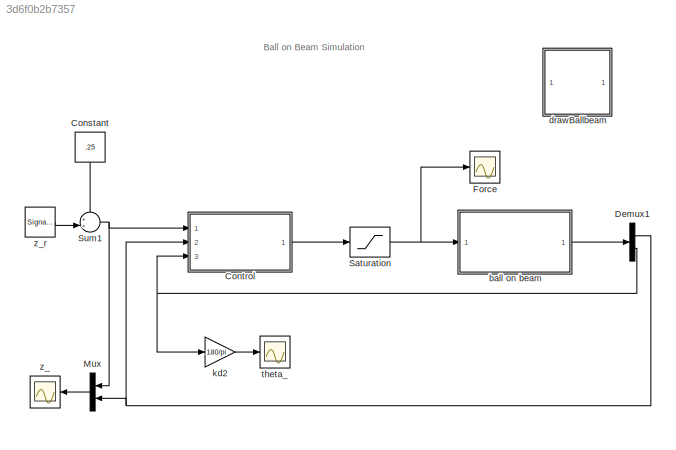
MODEL slx_3d6f0b2b7357
KIND model
CONFIG AbsTol = auto
CONFIG EnableMultiTasking = on
CONFIG FixedStep = auto
CONFIG InitFcn = addpath ./..\nballbeam_param\nballbeamParamHWf
CONFIG MaxStep = auto
CONFIG MinStep = auto
CONFIG RelTol = 1e-3
CONFIG SampleTimeConstraint = Unconstrained
CONFIG Solver = ode45
CONFIG SolverName = ode45
CONFIG StartTime = 0.0
CONFIG StopTime = P.t_end
BLOCK [Constant] Constant
  Value = .25
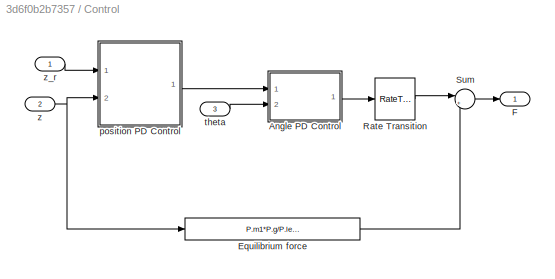
BLOCK [SubSystem] Control
  Ports = [3, 1]
  RequestExecContextInheritance = off
  Variant = off
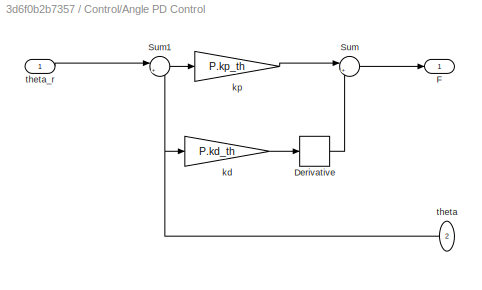
BLOCK [SubSystem] Control/Angle PD Control 
  Ports = [2, 1]
  RequestExecContextInheritance = off
  Variant = off
BLOCK [Derivative] Control/Angle PD Control /Derivative
  CoefficientInTFapproximation = P.sigma
BLOCK [Outport] Control/Angle PD Control /F
  IconDisplay = Port number
BLOCK [Sum] Control/Angle PD Control /Sum
  IconShape = round
  InputSameDT = off
  Inputs = |+-
  OutDataTypeStr = Inherit: Inherit via internal rule
  Ports = [2, 1]
  SaturateOnIntegerOverflow = off
BLOCK [Sum] Control/Angle PD Control /Sum1
  IconShape = round
  InputSameDT = off
  Inputs = |+-
  OutDataTypeStr = Inherit: Inherit via internal rule
  Ports = [2, 1]
  SaturateOnIntegerOverflow = off
BLOCK [Gain] Control/Angle PD Control /kd
  Gain = P.kd_th
  OutDataTypeStr = Inherit: Inherit via internal rule
  ParamDataTypeStr = Inherit: Inherit via internal rule
  SaturateOnIntegerOverflow = off
BLOCK [Gain] Control/Angle PD Control /kp
  Gain = P.kp_th
  OutDataTypeStr = Inherit: Inherit via internal rule
  ParamDataTypeStr = Inherit: Inherit via internal rule
  SaturateOnIntegerOverflow = off
BLOCK [Inport] Control/Angle PD Control /theta
  IconDisplay = Port number
  Port = 2
BLOCK [Inport] Control/Angle PD Control /theta_r
  IconDisplay = Port number
BLOCK [Fcn] Control/Equilibrium force
  Expr = P.m1*P.g/P.length*u+P.m2*P.g/2
BLOCK [Outport] Control/F
  IconDisplay = Port number
BLOCK [RateTransition] Control/Rate Transition
  OutPortSampleTime = P.Ts
BLOCK [Sum] Control/Sum
  IconShape = round
  InputSameDT = off
  Inputs = |++
  OutDataTypeStr = Inherit: Inherit via internal rule
  Ports = [2, 1]
  SaturateOnIntegerOverflow = off
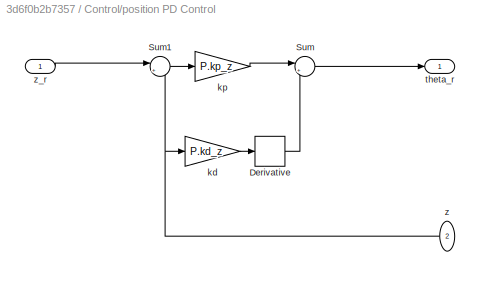
BLOCK [SubSystem] Control/position PD Control
  Ports = [2, 1]
  RequestExecContextInheritance = off
  Variant = off
BLOCK [Derivative] Control/position PD Control/Derivative
  CoefficientInTFapproximation = P.sigma
BLOCK [Sum] Control/position PD Control/Sum
  IconShape = round
  InputSameDT = off
  Inputs = |+-
  OutDataTypeStr = Inherit: Inherit via internal rule
  Ports = [2, 1]
  SaturateOnIntegerOverflow = off
BLOCK [Sum] Control/position PD Control/Sum1
  IconShape = round
  InputSameDT = off
  Inputs = |+-
  OutDataTypeStr = Inherit: Inherit via internal rule
  Ports = [2, 1]
  SaturateOnIntegerOverflow = off
BLOCK [Gain] Control/position PD Control/kd
  Gain = P.kd_z
  OutDataTypeStr = Inherit: Inherit via internal rule
  ParamDataTypeStr = Inherit: Inherit via internal rule
  SaturateOnIntegerOverflow = off
BLOCK [Gain] Control/position PD Control/kp
  Gain = P.kp_z
  OutDataTypeStr = Inherit: Inherit via internal rule
  ParamDataTypeStr = Inherit: Inherit via internal rule
  SaturateOnIntegerOverflow = off
BLOCK [Outport] Control/position PD Control/theta_r
  IconDisplay = Port number
BLOCK [Inport] Control/position PD Control/z
  IconDisplay = Port number
  Port = 2
BLOCK [Inport] Control/position PD Control/z_r
  IconDisplay = Port number
BLOCK [Inport] Control/theta
  IconDisplay = Port number
  Port = 3
BLOCK [Inport] Control/z
  IconDisplay = Port number
  Port = 2
BLOCK [Inport] Control/z_r
  IconDisplay = Port number
BLOCK [Demux] Demux1
  DisplayOption = bar
  Outputs = 2
  Ports = [1, 2]
BLOCK [Scope] Force
  NumInputPorts = 1
  Ports = [1]
  ScopeSpecificationString = Simulink.scopes.TimeScopeBlockCfg('CurrentConfiguration', extmgr.ConfigurationSet(extmgr.Configuration('Core','General UI',true),extmgr.Configuration('Core','Source UI',true),extmgr.Configuration('Sources','WiredSimulink',true,'DataLoggingSaveFormat','StructureWithTime','DataLoggingLimitDataPoints',true,'DataLoggingDecimation','1','DataLoggingDecimateData',true,'DataLoggingVariableName','ScopeData...<+1745ch>
BLOCK [Mux] Mux
  DisplayOption = bar
  Inputs = 2
  Ports = [2, 1]
BLOCK [Saturate] Saturation
  InputPortMap = u0
  LowerLimit = -P.Fmax
  Ports = [1, 1]
  UpperLimit = P.Fmax
BLOCK [Sum] Sum1
  IconShape = round
  InputSameDT = off
  Inputs = ++|
  OutDataTypeStr = Inherit: Inherit via internal rule
  Ports = [2, 1]
  SaturateOnIntegerOverflow = off
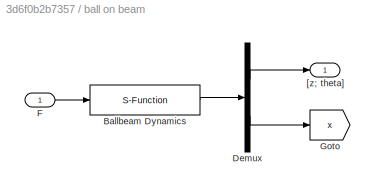
BLOCK [SubSystem] ball on beam
  Ports = [1, 1]
  RequestExecContextInheritance = off
  Variant = off
BLOCK [S-Function] ball on beam/Ballbeam Dynamics
  EnableBusSupport = off
  FunctionName = ballbeam_dynamics
  Parameters = P
  Ports = [1, 1]
  SFcnIsStateOwnerBlock = off
  SFunctionDeploymentMode = off
BLOCK [Demux] ball on beam/Demux
  DisplayOption = bar
  Outputs = [2;4]
  Ports = [1, 2]
BLOCK [Inport] ball on beam/F
  IconDisplay = Port number
BLOCK [Goto] ball on beam/Goto
  GotoTag = x
  TagVisibility = global
BLOCK [Outport] ball on beam/[z; theta]
  IconDisplay = Port number
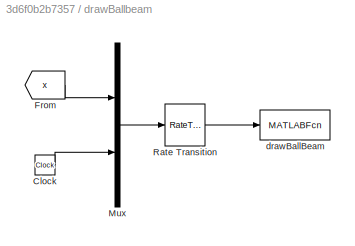
BLOCK [SubSystem] drawBallbeam
  Ports = []
  RequestExecContextInheritance = off
  Variant = off
BLOCK [Clock] drawBallbeam/Clock
BLOCK [From] drawBallbeam/From
  GotoTag = x
  TagVisibility = global
BLOCK [Mux] drawBallbeam/Mux
  DisplayOption = bar
  Inputs = 2
  Ports = [2, 1]
BLOCK [RateTransition] drawBallbeam/Rate Transition
  OutPortSampleTime = P.t_plot
BLOCK [MATLABFcn] drawBallbeam/drawBallBeam
  MATLABFcn = ballbeam_animation(u,P)
  OutputDimensions = 0
  Ports = [1]
BLOCK [Gain] kd2
  Gain = 180/pi
  OutDataTypeStr = Inherit: Inherit via internal rule
  ParamDataTypeStr = Inherit: Inherit via internal rule
  SaturateOnIntegerOverflow = off
BLOCK [Scope] theta_
  NumInputPorts = 1
  Ports = [1]
  ScopeSpecificationString = Simulink.scopes.TimeScopeBlockCfg('CurrentConfiguration', extmgr.ConfigurationSet(extmgr.Configuration('Core','General UI',true),extmgr.Configuration('Core','Source UI',true),extmgr.Configuration('Sources','WiredSimulink',true,'DataLoggingSaveFormat','StructureWithTime','DataLoggingLimitDataPoints',true,'DataLoggingDecimation','1','DataLoggingDecimateData',true,'DataLoggingVariableName','ScopeData...<+1797ch>
BLOCK [Scope] z_
  NumInputPorts = 1
  Ports = [1]
  ScopeSpecificationString = Simulink.scopes.TimeScopeBlockCfg('CurrentConfiguration', extmgr.ConfigurationSet(extmgr.Configuration('Core','General UI',true),extmgr.Configuration('Core','Source UI',true),extmgr.Configuration('Sources','WiredSimulink',true,'DataLoggingVariableName','ScopeData3','DataLoggingSaveFormat','StructureWithTime','DataLoggingLimitDataPoints',true,'DataLoggingDecimation','1','DataLoggingDecimateData',tr...<+1791ch>
BLOCK [SignalGenerator] z_r
  Amplitude = 0.125
  Frequency = .02
  Ports = [0, 1]
  WaveForm = square
ANNOTATION (root): Ball on Beam Simulation
LINE Constant:1 -> Sum1:1
LINE Control/Angle PD Control /Derivative:1 -> Control/Angle PD Control /Sum:2
LINE Control/Angle PD Control /Sum1:1 -> Control/Angle PD Control /kp:1
LINE Control/Angle PD Control /Sum:1 -> Control/Angle PD Control /F:1
LINE Control/Angle PD Control /kd:1 -> Control/Angle PD Control /Derivative:1
LINE Control/Angle PD Control /kp:1 -> Control/Angle PD Control /Sum:1
NET Control/Angle PD Control /theta:1 -> Control/Angle PD Control /Sum1:2, Control/Angle PD Control /kd:1
LINE Control/Angle PD Control /theta_r:1 -> Control/Angle PD Control /Sum1:1
LINE Control/Angle PD Control :1 -> Control/Rate Transition:1
LINE Control/Equilibrium force:1 -> Control/Sum:2
LINE Control/Rate Transition:1 -> Control/Sum:1
LINE Control/Sum:1 -> Control/F:1
LINE Control/position PD Control/Derivative:1 -> Control/position PD Control/Sum:2
LINE Control/position PD Control/Sum1:1 -> Control/position PD Control/kp:1
LINE Control/position PD Control/Sum:1 -> Control/position PD Control/theta_r:1
LINE Control/position PD Control/kd:1 -> Control/position PD Control/Derivative:1
LINE Control/position PD Control/kp:1 -> Control/position PD Control/Sum:1
NET Control/position PD Control/z:1 -> Control/position PD Control/Sum1:2, Control/position PD Control/kd:1
LINE Control/position PD Control/z_r:1 -> Control/position PD Control/Sum1:1
LINE Control/position PD Control:1 -> Control/Angle PD Control :1
LINE Control/theta:1 -> Control/Angle PD Control :2
NET Control/z:1 -> Control/Equilibrium force:1, Control/position PD Control:2
LINE Control/z_r:1 -> Control/position PD Control:1
LINE Control:1 -> Saturation:1
NET Demux1:1 -> Control:2, Mux:2
NET Demux1:2 -> Control:3, kd2:1
LINE Mux:1 -> z_:1
NET Saturation:1 -> Force:1, ball on beam:1
NET Sum1:1 -> Control:1, Mux:1
LINE ball on beam/Ballbeam Dynamics:1 -> ball on beam/Demux:1
LINE ball on beam/Demux:1 -> ball on beam/[z; theta]:1
LINE ball on beam/Demux:2 -> ball on beam/Goto:1
LINE ball on beam/F:1 -> ball on beam/Ballbeam Dynamics:1
LINE ball on beam:1 -> Demux1:1
LINE drawBallbeam/Clock:1 -> drawBallbeam/Mux:2
LINE drawBallbeam/From:1 -> drawBallbeam/Mux:1
LINE drawBallbeam/Mux:1 -> drawBallbeam/Rate Transition:1
LINE drawBallbeam/Rate Transition:1 -> drawBallbeam/drawBallBeam:1
LINE kd2:1 -> theta_:1
LINE z_r:1 -> Sum1:2
note: NET lines group one-source signal fan-out (src -> all destinations, sorted); 1:1 wires keep LINE
